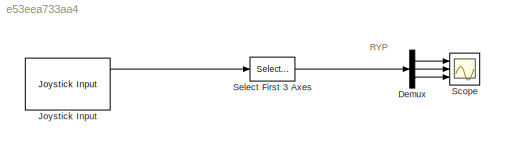
MODEL slx_e53eea733aa4
KIND model
CONFIG AbsTol = auto
CONFIG EnableMultiTasking = off
CONFIG FixedStep = auto
CONFIG MaxStep = auto
CONFIG MinStep = auto
CONFIG RelTol = 1e-3
CONFIG SampleTimeConstraint = Unconstrained
CONFIG Solver = VariableStepAuto
CONFIG SolverName = VariableStepAuto
CONFIG StartTime = 0.0
CONFIG StopTime = inf
BLOCK [Demux] Demux
  DisplayOption = bar
  Outputs = 3
  Ports = [1, 3]
BLOCK [Reference] Joystick Input  REF=vrlib/Joystick Input
  Ports = [0, 3]
  SourceBlock = vrlib/Joystick Input
  SourceProductBaseCode = SL
  SourceProductName = Simulink
  SourceType = Joystick Input
BLOCK [Scope] Scope
  Floating = off
  NumInputPorts = 3
  Ports = [3]
  ScopeSpecificationString = Simulink.scopes.TimeScopeBlockCfg('CurrentConfiguration', extmgr.ConfigurationSet(extmgr.Configuration('Core','General UI',true),extmgr.Configuration('Core','Source UI',true),extmgr.Configuration('Sources','WiredSimulink',true),extmgr.Configuration('Visuals','Time Domain',true,'SerializedDisplays',{struct('MinYLimReal','-0.00877','MaxYLimReal','0.00097','YLabelReal','','MinYLimMag','0.00000','MaxY...<+1370ch>
BLOCK [Selector] Select First 3 Axes
  AttributesFormatString = (Joystick - dependent)
  IndexOptions = Index vector (dialog)
  Indices = [1 3 2]
  InputPortWidth = 4
  OutputSizes = 1
  Ports = [1, 1]
ANNOTATION (root): RYP
LINE Demux:1 -> Scope:1
LINE Demux:2 -> Scope:2
LINE Demux:3 -> Scope:3
LINE Joystick Input:1 -> Select First 3 Axes:1
LINE Select First 3 Axes:1 -> Demux:1
